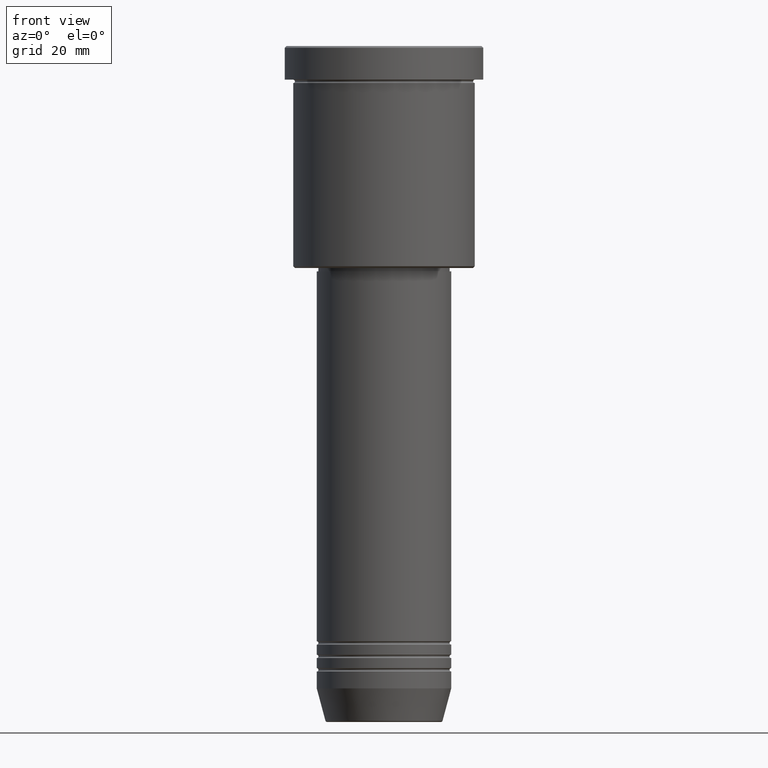
[diagram: clean part render]
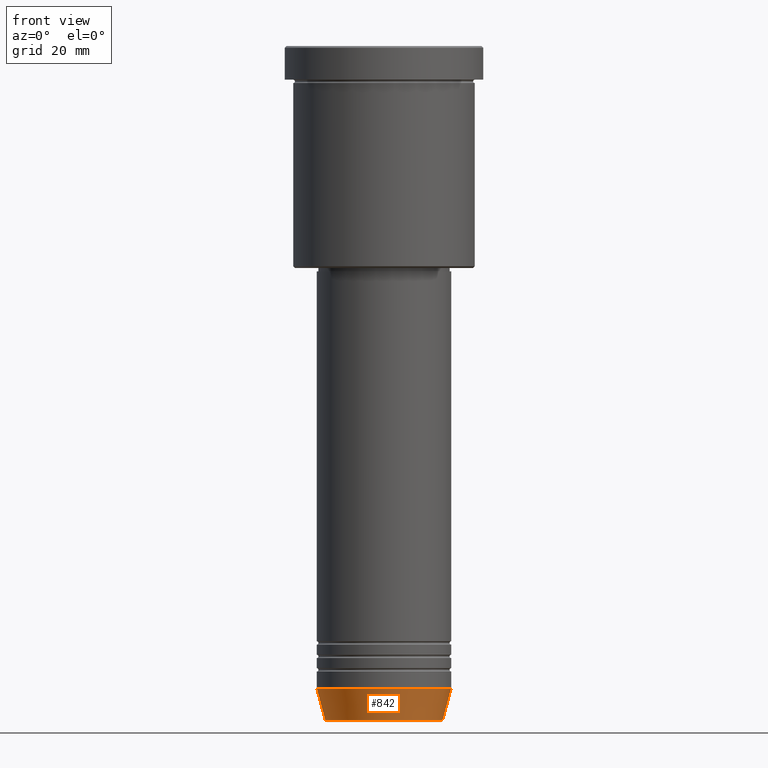
[diagram: same view with one face highlighted and labeled with its STEP entity id]
A machine part, front view. The second image highlights one B-rep face of the part: STEP entity #842.
In plain terms, the highlighted conical surface has half-angle 15 deg.
Its self-contained STEP definition (entity closure, byte-faithful):
#7 = CARTESIAN_POINT ( 'NONE',  ( 0.000000000000000000, 0.000000000000000000, -200.6294095225512706 ) ) ;
#46 = EDGE_CURVE ( 'NONE', #729, #320, #167, .T. ) ;
#118 = DIRECTION ( 'NONE',  ( -0.2588190451025211836, 3.169619151431770488E-17, 0.9659258262890680902 ) ) ;
#133 = ORIENTED_EDGE ( 'NONE', *, *, #415, .T. ) ;
#148 = VECTOR ( 'NONE', #180, 1000.000000000000114 ) ;
#167 = CIRCLE ( 'NONE', #393, 17.41980749484382329 ) ;
#180 = DIRECTION ( 'NONE',  ( 0.2588190451025211836, 0.000000000000000000, 0.9659258262890680902 ) ) ;
#209 = CIRCLE ( 'NONE', #860, 20.00000000000000000 ) ;
#249 = LINE ( 'NONE', #617, #148 ) ;
#257 = CONICAL_SURFACE ( 'NONE', #573, 20.00000000000000000, 0.2617993877991499074 ) ;
#274 = DIRECTION ( 'NONE',  ( 1.000000000000000000, 0.000000000000000000, 0.000000000000000000 ) ) ;
#320 = VERTEX_POINT ( 'NONE', #962 ) ;
#325 = CARTESIAN_POINT ( 'NONE',  ( -20.00000000000000000, 2.449293598294706513E-15, -191.0000000000000000 ) ) ;
#348 = EDGE_CURVE ( 'NONE', #398, #1164, #209, .T. ) ;
#393 = AXIS2_PLACEMENT_3D ( 'NONE', #7, #471, #274 ) ;
#398 = VERTEX_POINT ( 'NONE', #325 ) ;
#399 = CARTESIAN_POINT ( 'NONE',  ( 20.00000000000000000, 0.000000000000000000, -191.0000000000000000 ) ) ;
#415 = EDGE_CURVE ( 'NONE', #320, #1164, #249, .T. ) ;
#440 = ORIENTED_EDGE ( 'NONE', *, *, #1102, .F. ) ;
#470 = CARTESIAN_POINT ( 'NONE',  ( -20.00000000000000000, 2.449293598294706513E-15, -191.0000000000000000 ) ) ;
#471 = DIRECTION ( 'NONE',  ( -0.000000000000000000, -0.000000000000000000, 1.000000000000000000 ) ) ;
#522 = DIRECTION ( 'NONE',  ( 1.000000000000000000, 0.000000000000000000, 0.000000000000000000 ) ) ;
#559 = LINE ( 'NONE', #470, #1038 ) ;
#573 = AXIS2_PLACEMENT_3D ( 'NONE', #605, #789, #695 ) ;
#605 = CARTESIAN_POINT ( 'NONE',  ( 0.000000000000000000, 0.000000000000000000, -191.0000000000000000 ) ) ;
#617 = CARTESIAN_POINT ( 'NONE',  ( 20.00000000000000000, 0.000000000000000000, -191.0000000000000000 ) ) ;
#695 = DIRECTION ( 'NONE',  ( 1.000000000000000000, 0.000000000000000000, 0.000000000000000000 ) ) ;
#729 = VERTEX_POINT ( 'NONE', #955 ) ;
#789 = DIRECTION ( 'NONE',  ( -0.000000000000000000, -0.000000000000000000, 1.000000000000000000 ) ) ;
#842 = ADVANCED_FACE ( 'NONE', ( #863 ), #257, .T. ) ;
#860 = AXIS2_PLACEMENT_3D ( 'NONE', #1137, #1047, #522 ) ;
#863 = FACE_OUTER_BOUND ( 'NONE', #956, .T. ) ;
#877 = ORIENTED_EDGE ( 'NONE', *, *, #348, .F. ) ;
#955 = CARTESIAN_POINT ( 'NONE',  ( -17.41980749484382329, 2.291302373663531915E-15, -200.6294095225512706 ) ) ;
#956 = EDGE_LOOP ( 'NONE', ( #440, #1130, #133, #877 ) ) ;
#962 = CARTESIAN_POINT ( 'NONE',  ( 17.41980749484382329, 0.000000000000000000, -200.6294095225512706 ) ) ;
#1038 = VECTOR ( 'NONE', #118, 1000.000000000000114 ) ;
#1047 = DIRECTION ( 'NONE',  ( -0.000000000000000000, -0.000000000000000000, 1.000000000000000000 ) ) ;
#1102 = EDGE_CURVE ( 'NONE', #729, #398, #559, .T. ) ;
#1130 = ORIENTED_EDGE ( 'NONE', *, *, #46, .T. ) ;
#1137 = CARTESIAN_POINT ( 'NONE',  ( 0.000000000000000000, 0.000000000000000000, -191.0000000000000000 ) ) ;
#1164 = VERTEX_POINT ( 'NONE', #399 ) ;